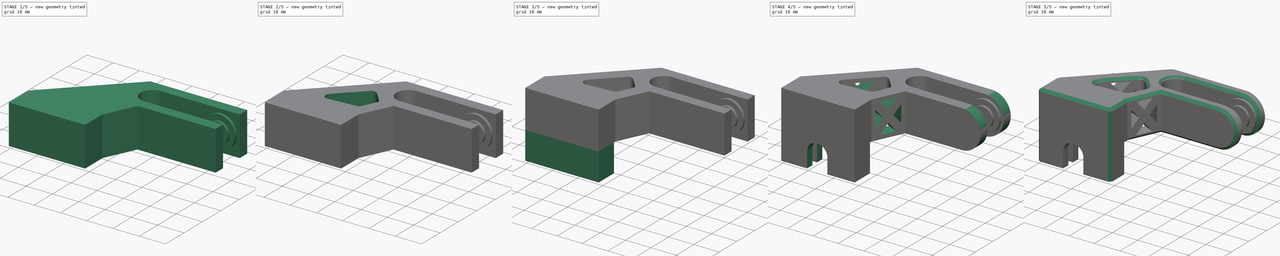
[diagram: build sequence overview — one tinted view per stage of 5, left to right]
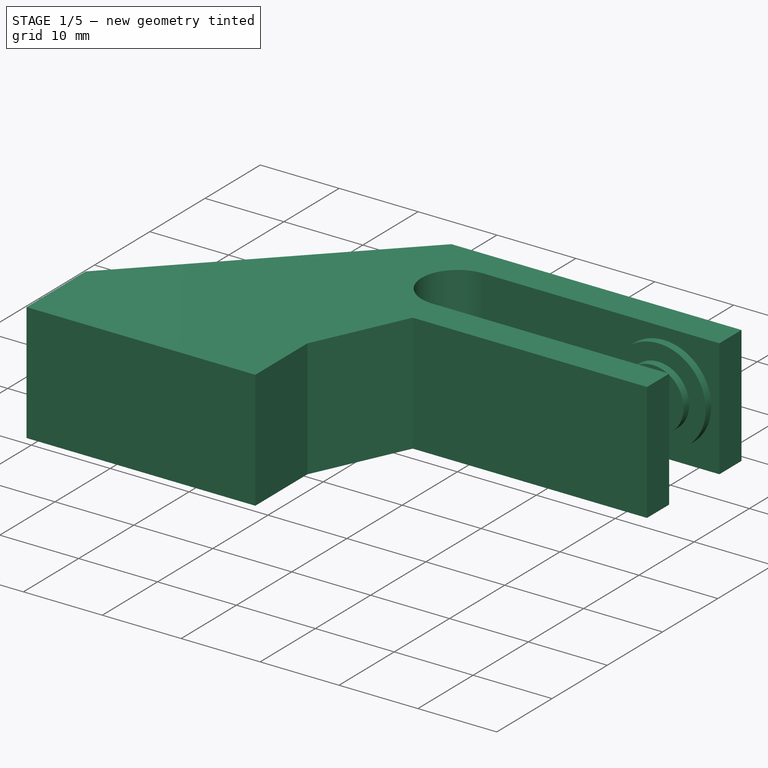
[diagram: stage 1 of 5 — iso view after this stage's code; geometry added in this stage tinted green]
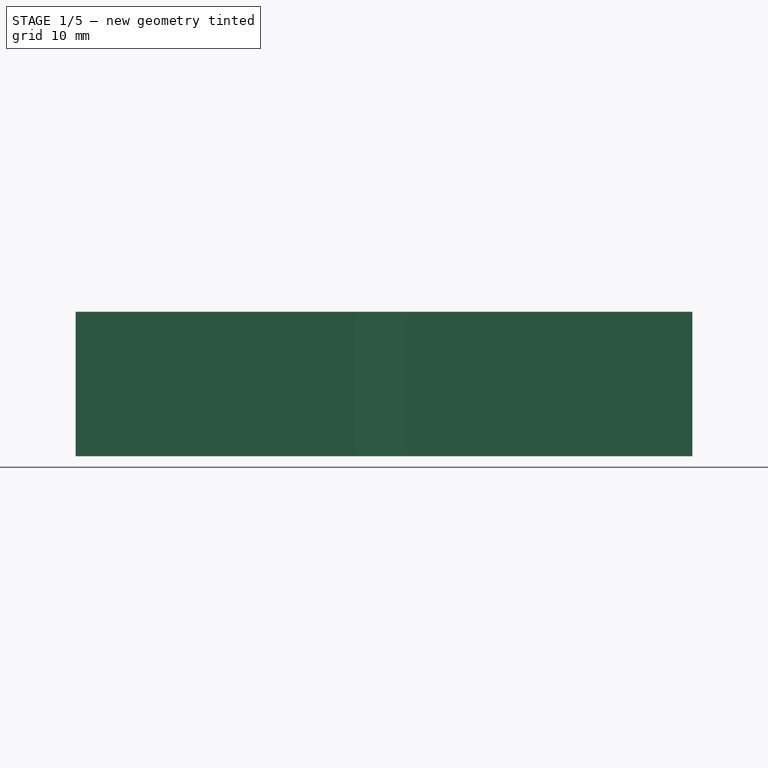
[diagram: stage 1 of 5 — front view after this stage's code; geometry added in this stage tinted green]
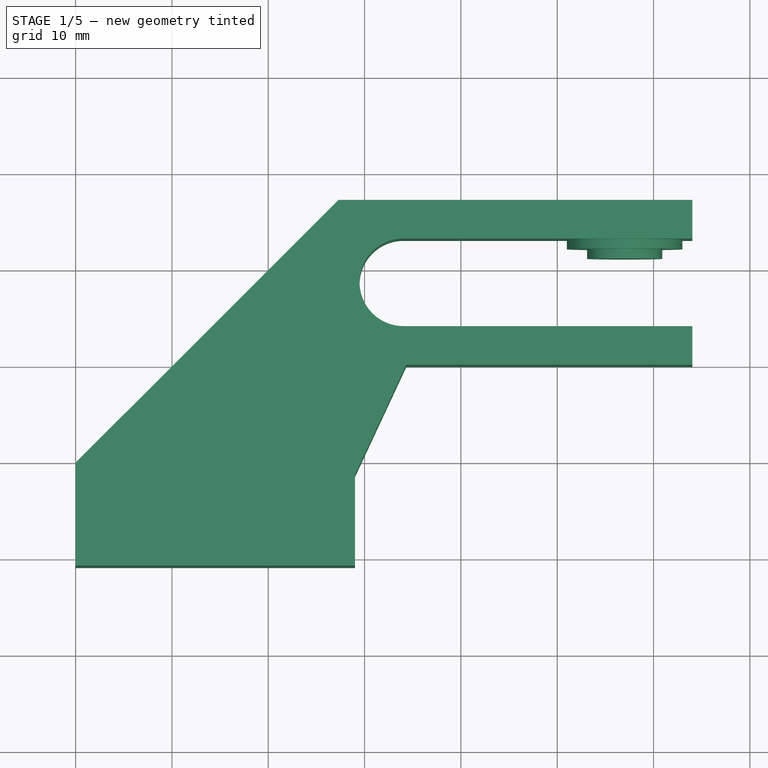
[diagram: stage 1 of 5 — top view after this stage's code; geometry added in this stage tinted green]
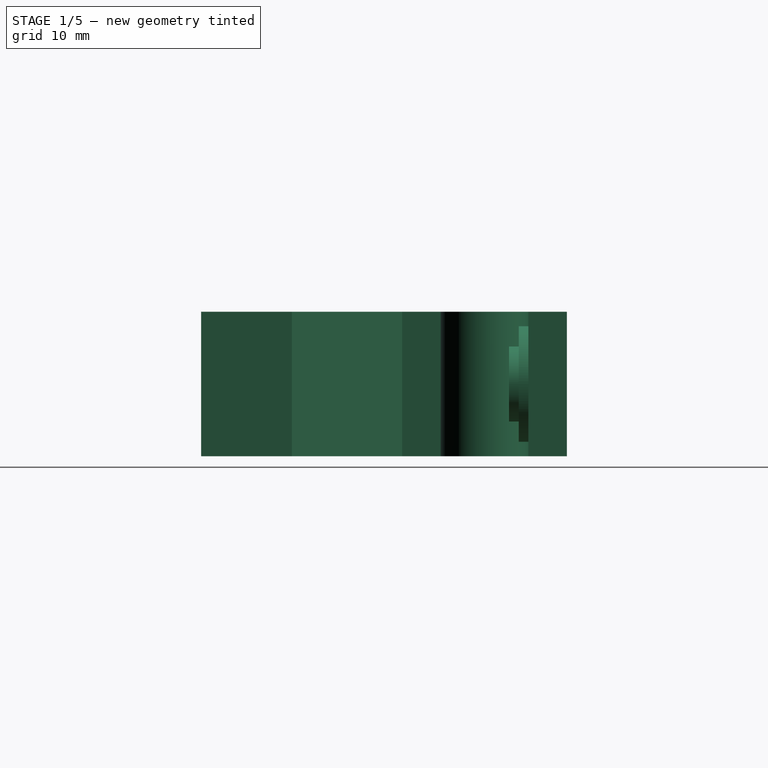
[diagram: stage 1 of 5 — right view after this stage's code; geometry added in this stage tinted green]
FCSTD DOCUMENT  (FreeCAD 0.19R23141 (Git))
Label: Bearing_Bracket_2020-12-09.FCStd-
License: All rights reserved
LicenseURL: http://en.wikipedia.org/wiki/All_rights_reserved
objects: Sketcher::SketchObject×11, PartDesign::Pad×7, PartDesign::Pocket×4, PartDesign::Chamfer×3, PartDesign::Fillet×1, PartDesign::Body×1, App::Part×1
note: 42 computed .brp shape members not serialized (recipe doc carries the construction recipe); baked Part::Feature solids carry a one-line shape summary decoded from their .brp

FEATURE [Sketcher::SketchObject] Sketch001  label="Main Body"
  MapMode = 5
  Support = -> [XY_Plane001]
  sketch-geometry (24):
    g0: ArcOfCircle [constr] CenterX=14.485 CenterY=-15.4501 CenterZ=0 NormalX=0 NormalY=0 NormalZ=1 AngleXU=0 Radius=1.9999 StartAngle=2.35607 EndAngle=4.71251
    g1: ArcOfCircle [constr] CenterX=25.1777 CenterY=-15.4502 CenterZ=0 NormalX=0 NormalY=0 NormalZ=1 AngleXU=0 Radius=1.99978 StartAngle=4.71232 EndAngle=5.84692
    g2: ArcOfCircle CenterX=34.032 CenterY=-1.45 CenterZ=0 NormalX=0 NormalY=0 NormalZ=1 AngleXU=0 Radius=4.55 StartAngle=1.5708 EndAngle=4.71239
    g3: LineSegment StartX=0 StartY=-20.1781 StartZ=0 EndX=0 EndY=-30.8676 EndZ=0
    g4: LineSegment StartX=0 StartY=-30.8676 StartZ=0 EndX=29 EndY=-30.8676 EndZ=0
    g5: LineSegment StartX=29 StartY=-30.8676 StartZ=0 EndX=29 EndY=-21.4458 EndZ=0
    g6: ArcOfCircle [constr] CenterX=27.382 CenterY=-10.722 CenterZ=0 NormalX=0 NormalY=0 NormalZ=1 AngleXU=0 Radius=2.00029 StartAngle=5.84695 EndAngle=7.06848
    g7: ArcOfCircle [constr] CenterX=23.2977 CenterY=-6.63819 CenterZ=0 NormalX=0 NormalY=0 NormalZ=1 AngleXU=0 Radius=2.00039 StartAngle=0.785455 EndAngle=2.35586
    g8: LineSegment [constr] StartX=26.9902 StartY=-16.2952 StartZ=0 EndX=29.1949 EndY=-11.5672 EndZ=0
    g9: LineSegment [constr] StartX=13.0711 StartY=-14.0358 StartZ=0 EndX=21.8836 EndY=-5.22323 EndZ=0
    g10: LineSegment [constr] StartX=14.4853 StartY=-17.45 StartZ=0 EndX=25.1776 EndY=-17.45 EndZ=0
    g11: LineSegment [constr] StartX=28.7965 StartY=-9.3077 StartZ=0 EndX=24.7121 EndY=-5.22362 EndZ=0
    g12: LineSegment StartX=29 StartY=-21.4458 StartZ=0 EndX=34.3373 EndY=-10 EndZ=0
    g13: LineSegment StartX=64.032 StartY=7.1 StartZ=0 EndX=64.032 EndY=3.1 EndZ=0
    g14: LineSegment StartX=64.032 StartY=-6 StartZ=0 EndX=64.032 EndY=-10 EndZ=0
    g15: LineSegment StartX=0 StartY=-20.1781 StartZ=0 EndX=27.2781 EndY=7.1 EndZ=0
    g16: LineSegment StartX=34.032 StartY=-6 StartZ=0 EndX=64.032 EndY=-6 EndZ=0
    g17: LineSegment StartX=27.2781 StartY=7.1 StartZ=0 EndX=64.032 EndY=7.1 EndZ=0
    g18: LineSegment StartX=34.032 StartY=3.1 StartZ=0 EndX=64.032 EndY=3.1 EndZ=0
    g19: LineSegment StartX=34.3373 StartY=-10 StartZ=0 EndX=64.032 EndY=-10 EndZ=0
    g20: LineSegment [constr] StartX=1.159 StartY=-25.2676 StartZ=0 EndX=27.159 EndY=-25.2676 EndZ=0
    g21: LineSegment [constr] StartX=27.159 StartY=-25.2676 StartZ=0 EndX=27.159 EndY=-27.8676 EndZ=0
    g22: LineSegment [constr] StartX=27.159 StartY=-27.8676 StartZ=0 EndX=1.159 EndY=-27.8676 EndZ=0
    g23: LineSegment [constr] StartX=1.159 StartY=-27.8676 StartZ=0 EndX=1.159 EndY=-25.2676 EndZ=0
  constraints (45):
    c: Coincident(g16,g14)
    c: Horizontal(g16)
    c: Coincident(g17,g13)
    c: Horizontal(g17)
    c: Coincident(g18,g13)
    c: Horizontal(g18)
    c: Coincident(g19,g14)
    c: Horizontal(g19)
    c: Equal(g18,g16)
    c: DistanceY(g2) = 3.1
    c: DistanceY(g2) = -6
    c: Vertical(g13)
    c: Vertical(g14)
    c: Vertical(g3)
    c: Angle(g15) = 0.785398
    c: PointOnObject(g4,g-2)
    c: Coincident(g3,g15)
    c: Coincident(g3,g4)
    c: Vertical(g5)
    c: Coincident(g5,g4)
    c: Horizontal(g4)
    c: Angle(g12) = 1.13446
    c: Distance(g4) = 29
    c: Coincident(g5,g12)
    c: DistanceY(g14) = -10
    c: Coincident(g12,g19)
    c: Coincident(g15,g17)
    c: Coincident(g20,g21)
    c: Coincident(g21,g22)
    c: Coincident(g22,g23)
    c: Coincident(g23,g20)
    c: Horizontal(g20)
    c: Horizontal(g22)
    c: Vertical(g21)
    c: Vertical(g23)
    c: Distance(g21) = 2.6
    c: Distance(g22) = 26
    c: Distance(g3,g23) = 1.159
    c: Distance(g22,g4) = 3
    c: Equal(g13,g14)
    c: DistanceX(g2) = 34.032
    c: DistanceX(g15) = 27.2781
    c: Distance(g2,g13) = 30
    c: Tangent(g2,g18) = 1.5708
    c: Tangent(g16,g2) = -1.5708
FEATURE [PartDesign::Pad] Pad
  Direction = (1,1,1)
  Length = 15
  Length2 = 100
  Profile = -> Sketch001
  Type = 0
FEATURE [Sketcher::SketchObject] Sketch003  label="Bearing Shoulder1"
  MapMode = 5
  Placement = pos=(0,3.1,0) rot=(1,0,0;1.5708rad)
  sketch-geometry (1):
    g0: Circle CenterX=57 CenterY=7.5 CenterZ=0 NormalX=0 NormalY=0 NormalZ=1 AngleXU=0 Radius=6
  constraints (2):
    c: Diameter(g0) = 12
    c: DistanceX(g0) = 57
FEATURE [PartDesign::Pad] Pad001
  BaseFeature = -> Pad
  Direction = (1,1,1)
  Length = 1
  Length2 = 100
  Profile = -> Sketch003
  Type = 0
FEATURE [Sketcher::SketchObject] Sketch004  label="Bearing Shoulder 2"
  MapMode = 5
  Placement = pos=(0,-6,0) rot=(0,0.707107,0.707107;3.14159rad)
  sketch-geometry (4):
    g0: Circle [constr] CenterX=-57 CenterY=7.5 CenterZ=0 NormalX=0 NormalY=0 NormalZ=1 AngleXU=0 Radius=3.02529
    g1: Circle CenterX=-57 CenterY=7.5 CenterZ=0 NormalX=0 NormalY=0 NormalZ=1 AngleXU=0 Radius=6
    g2: LineSegment [constr] StartX=-57 StartY=7.5 StartZ=0 EndX=-57 EndY=15 EndZ=0
    g3: LineSegment [constr] StartX=-57 StartY=7.5 StartZ=0 EndX=-57 EndY=-1.8e-15 EndZ=0
  constraints (8):
    c: Coincident(g1,g0)
    c: DistanceX(g0) = -57
    c: Coincident(g2,g0)
    c: Vertical(g2)
    c: Coincident(g3,g0)
    c: Vertical(g3)
    c: Equal(g2,g3)
    c: Diameter(g1) = 12
FEATURE [Sketcher::SketchObject] Sketch  label="Bearing Axle2"
  MapMode = 5
  Placement = pos=(0,-5,1e-15) rot=(0,0.707107,0.707107;3.14159rad)
  sketch-geometry (1):
    g0: Circle CenterX=-57 CenterY=7.5 CenterZ=0 NormalX=0 NormalY=0 NormalZ=1 AngleXU=0 Radius=3.9
  constraints (2):
    c: Diameter(g0) = 7.8
    c: DistanceX(g0) = -57
FEATURE [Sketcher::SketchObject] Sketch005  label="Bearing Axle1"
  ExternalGeometry = -> [Pad001]
  MapMode = 5
  Placement = pos=(-1e-16,2.1,-4e-16) rot=(1,0,0;1.5708rad)
  Support = -> [Pad001]
  sketch-geometry (1):
    g0: Circle CenterX=57 CenterY=7.5 CenterZ=0 NormalX=0 NormalY=0 NormalZ=1 AngleXU=0 Radius=3.9
  constraints (2):
    c: Coincident(g0,g-3)
    c: Diameter(g0) = 7.8
FEATURE [PartDesign::Pad] Pad002
  BaseFeature = -> Pad001
  Direction = (1,1,1)
  Length = 1
  Length2 = 100
  Profile = -> Sketch005
  Type = 0
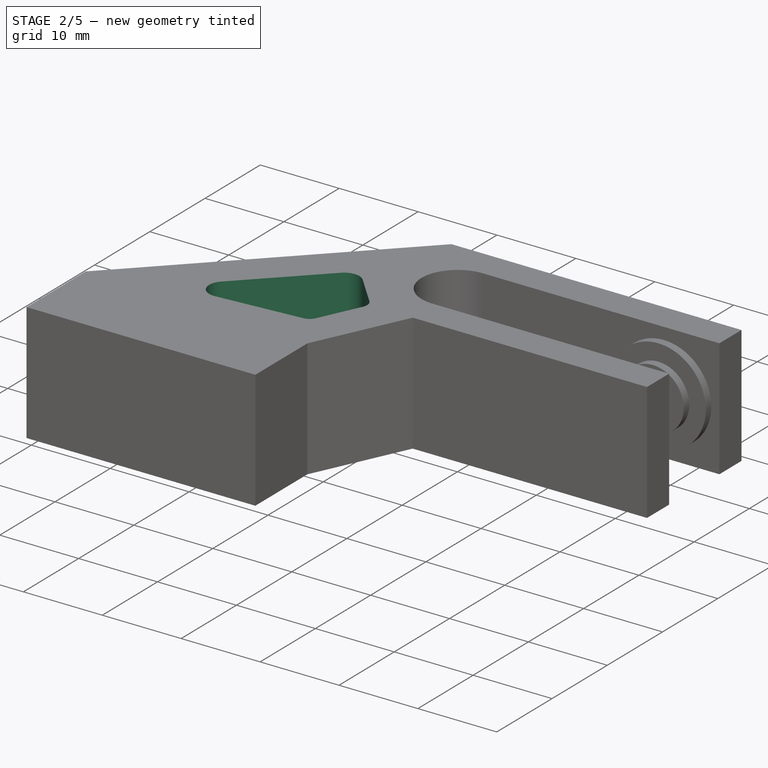
[diagram: stage 2 of 5 — iso view after this stage's code; geometry added in this stage tinted green]
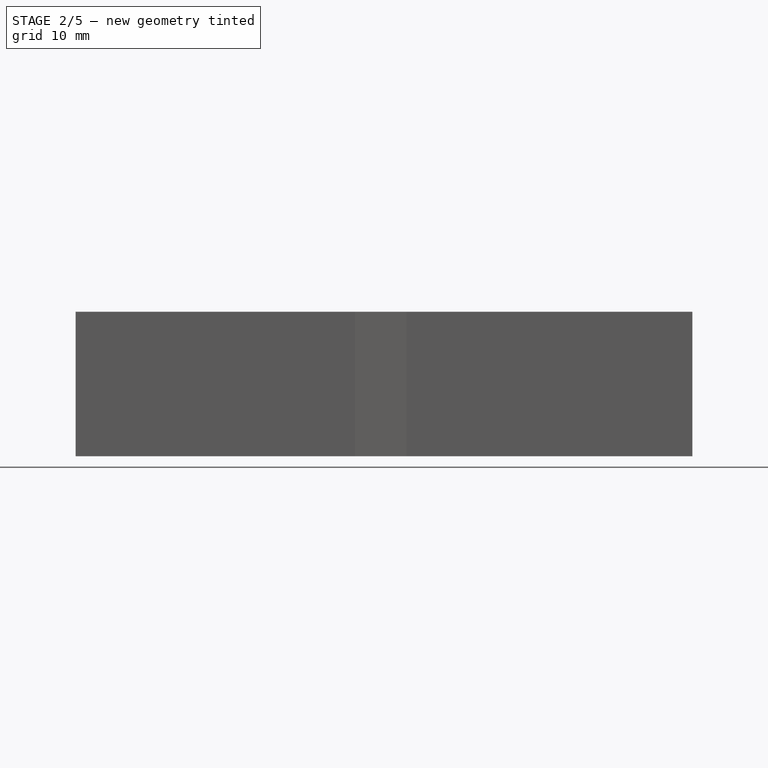
[diagram: stage 2 of 5 — front view after this stage's code; geometry added in this stage tinted green]
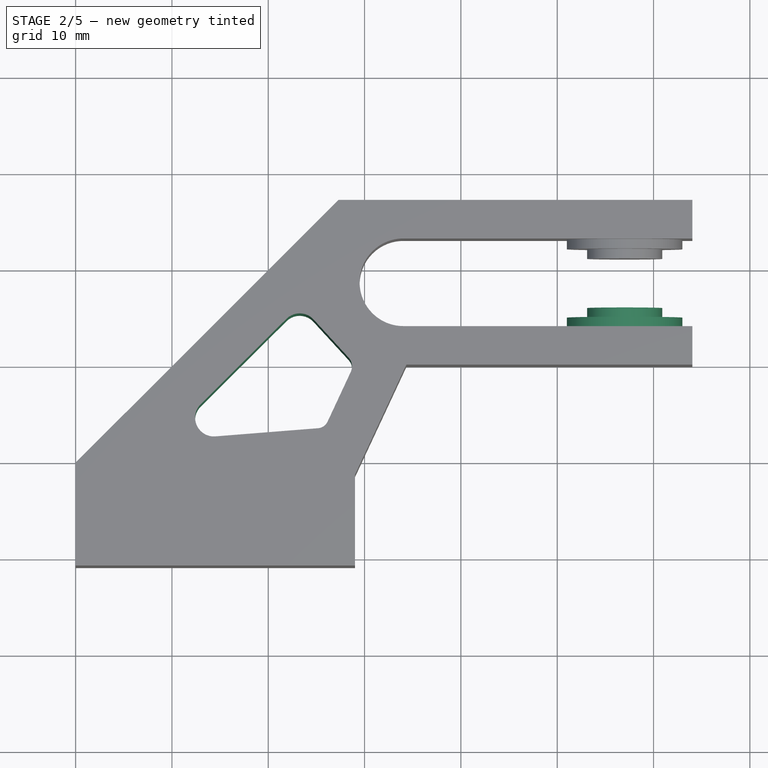
[diagram: stage 2 of 5 — top view after this stage's code; geometry added in this stage tinted green]
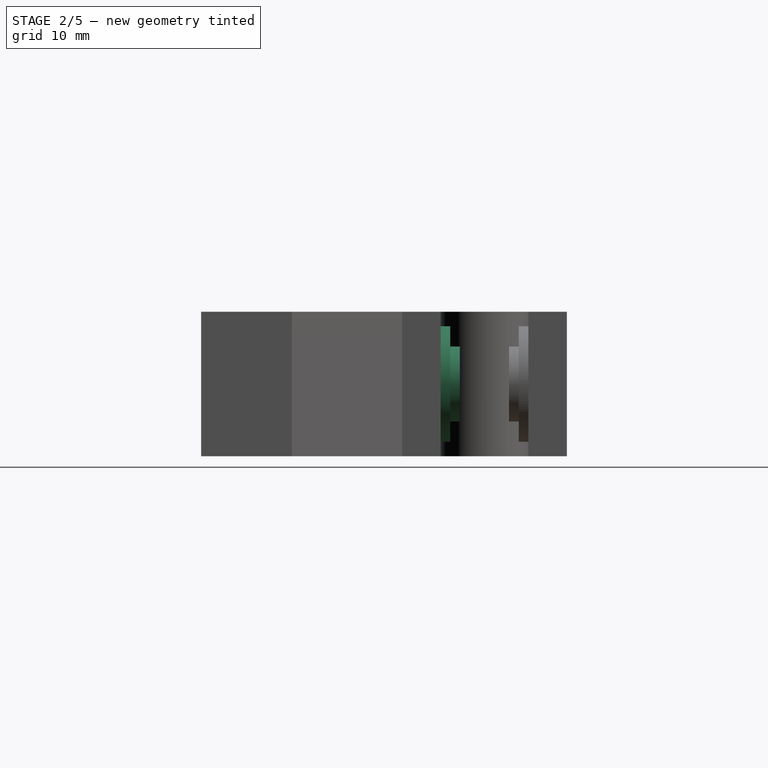
[diagram: stage 2 of 5 — right view after this stage's code; geometry added in this stage tinted green]
FEATURE [PartDesign::Pad] Pad003  label="Bearing Shoulder 2 Pad"
  BaseFeature = -> Pad002
  Direction = (1,1,1)
  Length = 1
  Length2 = 100
  Profile = -> Sketch004
  Type = 0
FEATURE [PartDesign::Pad] Pad004
  BaseFeature = -> Pad003
  Direction = (1,1,1)
  Length = 1
  Length2 = 100
  Profile = -> Sketch
  Type = 0
FEATURE [Sketcher::SketchObject] Sketch008  label="Body Hole"
  ExternalGeometry = -> [Sketch001]
  MapMode = 5
  Support = -> [XY_Plane001]
  sketch-geometry (10):
    g0: ArcOfCircle CenterX=14.3607 CenterY=-15.5034 CenterZ=0 NormalX=0 NormalY=0 NormalZ=1 AngleXU=0 Radius=1.95551 StartAngle=2.29182 EndAngle=4.79165
    g1: ArcOfCircle CenterX=25.0765 CenterY=-15.417 CenterZ=0 NormalX=0 NormalY=0 NormalZ=1 AngleXU=0 Radius=1.19315 StartAngle=4.79165 EndAngle=5.84685
    g2: ArcOfCircle CenterX=27.3272 CenterY=-10.1859 CenterZ=0 NormalX=0 NormalY=0 NormalZ=1 AngleXU=0 Radius=1.36412 StartAngle=5.84685 EndAngle=7.02621
    g3: ArcOfCircle CenterX=23.2631 CenterY=-6.64014 CenterZ=0 NormalX=0 NormalY=0 NormalZ=1 AngleXU=0 Radius=1.95818 StartAngle=0.743029 EndAngle=2.3545
    g4: LineSegment StartX=26.1579 StartY=-15.9213 StartZ=0 EndX=28.5635 EndY=-10.7624 EndZ=0
    g5: LineSegment StartX=13.0698 StartY=-14.0345 StartZ=0 EndX=21.8808 EndY=-5.25316 EndZ=0
    g6: LineSegment StartX=14.5155 StartY=-17.4528 StartZ=0 EndX=25.171 EndY=-16.6064 EndZ=0
    g7: LineSegment StartX=28.3318 StartY=-9.26307 StartZ=0 EndX=24.7052 EndY=-5.31539 EndZ=0
    g8: LineSegment [constr] StartX=15.0628 StartY=-5.1153 StartZ=0 EndX=18.5292 EndY=-8.59348 EndZ=0
    g9: LineSegment [constr] StartX=26.7143 StartY=-14.7281 StartZ=0 EndX=31.1648 EndY=-16.8034 EndZ=0
  constraints (16):
    c: PointOnObject(g8,g-3)
    c: PointOnObject(g8,g5)
    c: Perpendicular(g5,g8)
    c: PointOnObject(g9,g4)
    c: PointOnObject(g9,g-4)
    c: Perpendicular(g4,g9)
    c: Perpendicular(g-4,g9)
    c: Coincident(g5,g0)
    c: Equal(g8,g9)
    c: Tangent(g6,g0) = -1.5708
    c: Tangent(g6,g1) = -1.5708
    c: Tangent(g4,g2) = -1.5708
    c: Tangent(g7,g2) = -1.5708
    c: Tangent(g7,g3) = -1.5708
    c: Tangent(g5,g3) = 1.5708
    c: Tangent(g1,g4) = -1.5708
FEATURE [PartDesign::Pocket] Pocket  label="Body Hole001"
  BaseFeature = -> Pad004
  Length = 5
  Length2 = 100
  Profile = -> Sketch008
  Reversed = true
  Type = 1
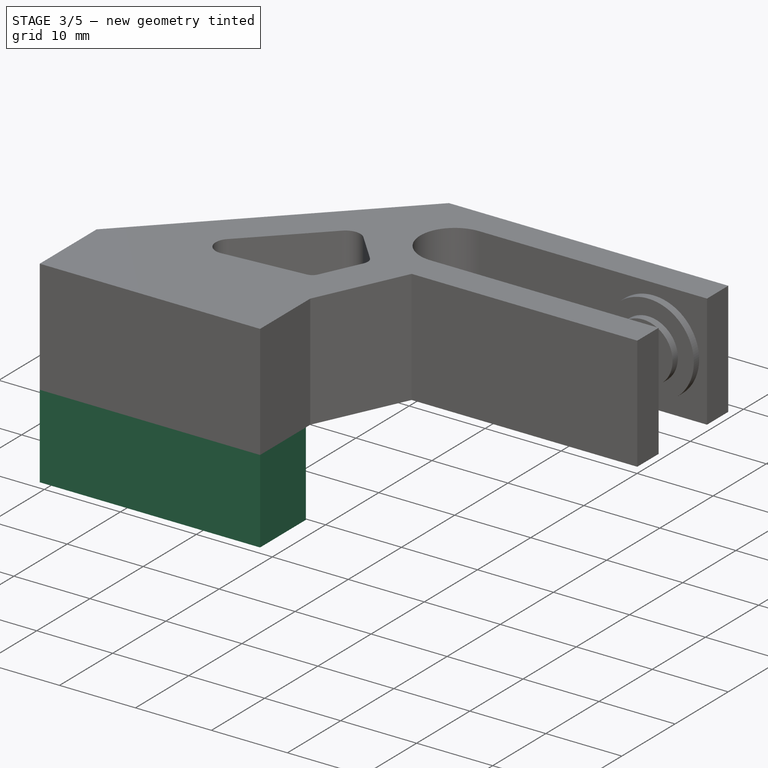
[diagram: stage 3 of 5 — iso view after this stage's code; geometry added in this stage tinted green]
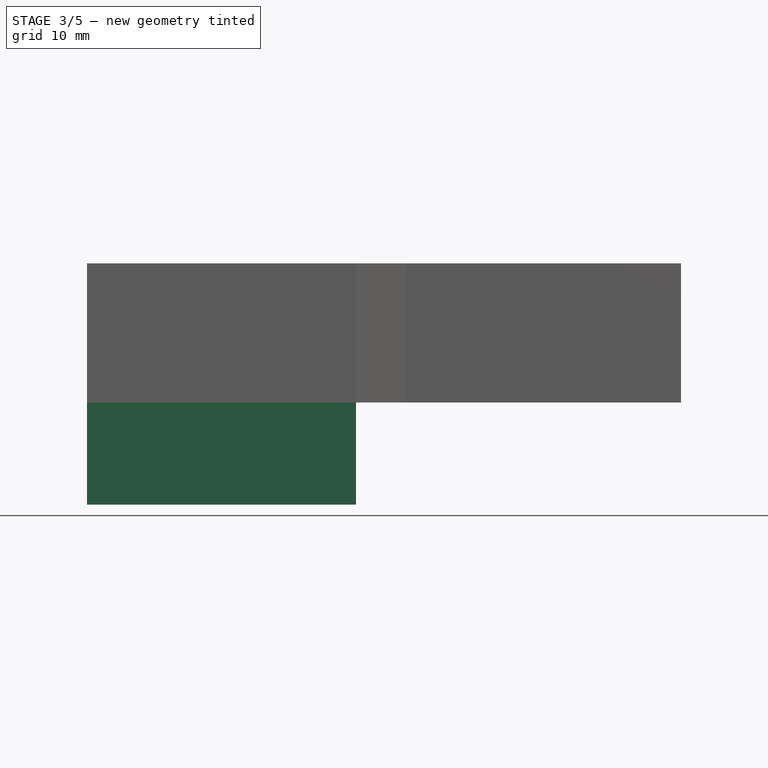
[diagram: stage 3 of 5 — front view after this stage's code; geometry added in this stage tinted green]
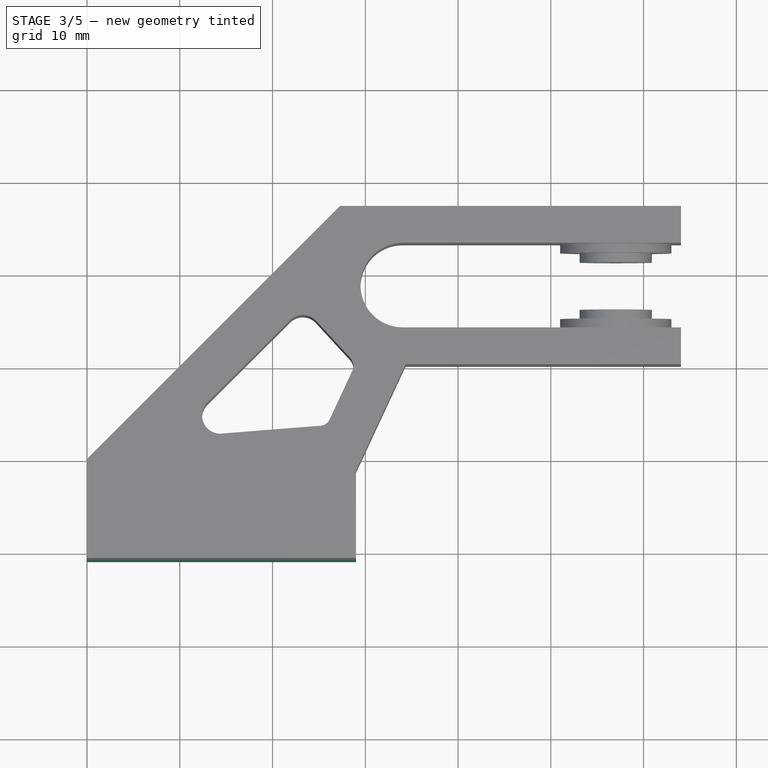
[diagram: stage 3 of 5 — top view after this stage's code; geometry added in this stage tinted green]
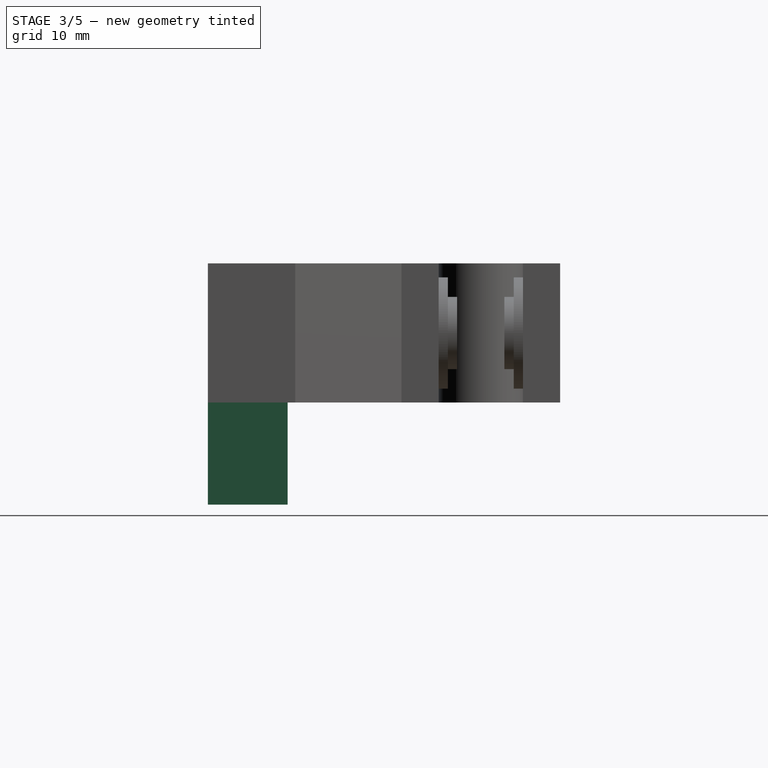
[diagram: stage 3 of 5 — right view after this stage's code; geometry added in this stage tinted green]
FEATURE [Sketcher::SketchObject] Sketch012  label="Body build-up"
  ExternalGeometry = -> [Sketch001]
  MapMode = 5
  Placement = pos=(0,0,0) rot=(1,0,0;3.14159rad)
  Support = -> [Pocket]
  sketch-geometry (10):
    g0: LineSegment StartX=1.159 StartY=27.8676 StartZ=0 EndX=27.159 EndY=27.8676 EndZ=0
    g1: LineSegment StartX=27.159 StartY=27.8676 StartZ=0 EndX=27.159 EndY=25.2676 EndZ=0
    g2: LineSegment StartX=27.159 StartY=25.2676 StartZ=0 EndX=1.159 EndY=25.2676 EndZ=0
    g3: LineSegment StartX=1.159 StartY=25.2676 StartZ=0 EndX=1.159 EndY=27.8676 EndZ=0
    g4: LineSegment [constr] StartX=3.82365 StartY=27.8676 StartZ=0 EndX=3.82365 EndY=30.8676 EndZ=0
    g5: LineSegment StartX=0 StartY=22.2676 StartZ=0 EndX=29 EndY=22.2676 EndZ=0
    g6: LineSegment [constr] StartX=7.85403 StartY=22.2676 StartZ=0 EndX=7.85403 EndY=25.2676 EndZ=0
    g7: LineSegment StartX=29 StartY=30.8676 StartZ=0 EndX=29 EndY=22.2676 EndZ=0
    g8: LineSegment StartX=0 StartY=30.8676 StartZ=0 EndX=0 EndY=22.2676 EndZ=0
    g9: LineSegment StartX=0 StartY=30.8676 StartZ=0 EndX=29 EndY=30.8676 EndZ=0
  constraints (28):
    c: Coincident(g0,g1)
    c: Coincident(g1,g2)
    c: Coincident(g2,g3)
    c: Coincident(g3,g0)
    c: Horizontal(g0)
    c: Horizontal(g2)
    c: Vertical(g1)
    c: Vertical(g3)
    c: Distance(g0) = 26
    c: Distance(g3) = 2.6
    c: PointOnObject(g4,g0)
    c: PointOnObject(g4,g-3)
    c: Vertical(g4)
    c: DistanceY(g4,g4) = 3
    c: Horizontal(g5)
    c: PointOnObject(g6,g5)
    c: PointOnObject(g6,g2)
    c: Vertical(g6)
    c: Equal(g6,g4)
    c: PointOnObject(g5,g-4)
    c: PointOnObject(g5,g-2)
    c: DistanceX(g-2,g2) = 1.159
    c: Coincident(g7,g-4)
    c: Coincident(g7,g5)
    c: Coincident(g8,g-3)
    c: Coincident(g8,g5)
    c: Coincident(g9,g8)
    c: Coincident(g9,g7)
FEATURE [PartDesign::Pad] Pad005  label="Body build-up001"
  BaseFeature = -> Pocket
  Direction = (1,1,1)
  Length = 11
  Length2 = 100
  Profile = -> Sketch012
  Type = 0
FEATURE [Sketcher::SketchObject] Sketch013
  ExternalGeometry = -> [Pad005]
  MapMode = 5
  Placement = pos=(0,0,-11) rot=(1,0,0;3.14159rad)
  Support = -> [Pad005]
  sketch-geometry (4):
    g0: LineSegment StartX=1.159 StartY=27.8676 StartZ=0 EndX=27.159 EndY=27.8676 EndZ=0
    g1: LineSegment StartX=27.159 StartY=27.8676 StartZ=0 EndX=27.159 EndY=25.2676 EndZ=0
    g2: LineSegment StartX=27.159 StartY=25.2676 StartZ=0 EndX=1.159 EndY=25.2676 EndZ=0
    g3: LineSegment StartX=1.159 StartY=25.2676 StartZ=0 EndX=1.159 EndY=27.8676 EndZ=0
  constraints (10):
    c: Coincident(g0,g1)
    c: Coincident(g1,g2)
    c: Coincident(g2,g3)
    c: Coincident(g3,g0)
    c: Horizontal(g0)
    c: Horizontal(g2)
    c: Vertical(g1)
    c: Vertical(g3)
    c: Coincident(g0,g-3)
    c: Coincident(g1,g-4)
FEATURE [PartDesign::Pocket] Pocket001  label="Slot Pocket"
  BaseFeature = -> Pad005
  Length = 21.471
  Length2 = 100
  Profile = -> Sketch013
  Type = 0
FEATURE [Sketcher::SketchObject] Sketch014
  ExternalGeometry = -> [Pocket001]
  MapMode = 5
  Placement = pos=(0,-25.2676,0) rot=(1,0,0;1.5708rad)
  Support = -> [Pocket001]
  sketch-geometry (4):
    g0: LineSegment [constr] StartX=27.159 StartY=-11 StartZ=0 EndX=27.159 EndY=-0.9 EndZ=0
    g1: LineSegment StartX=27.159 StartY=-0.9 StartZ=0 EndX=27.159 EndY=10.471 EndZ=0
    g2: LineSegment StartX=27.159 StartY=-0.9 StartZ=0 EndX=17.1567 EndY=10.471 EndZ=0
    g3: LineSegment StartX=27.159 StartY=10.471 StartZ=0 EndX=17.1567 EndY=10.471 EndZ=0
  constraints (11):
    c: Coincident(g0,g-4)
    c: Vertical(g0)
    c: DistanceY(g0,g0) = 10.1
    c: PointOnObject(g1,g0)
    c: Coincident(g1,g-3)
    c: Coincident(g2,g1)
    c: PointOnObject(g2,g-3)
    c: Coincident(g3,g1)
    c: Coincident(g3,g2)
    c: Angle(g2,g0) = 2.42014
    c: Distance(g1) = 11.371
FEATURE [PartDesign::Pad] Pad006  label="Ramp Pocket"
  BaseFeature = -> Pocket001
  Direction = (1,1,1)
  Length = 3
  Length2 = 100
  Profile = -> Sketch014
  Type = 2
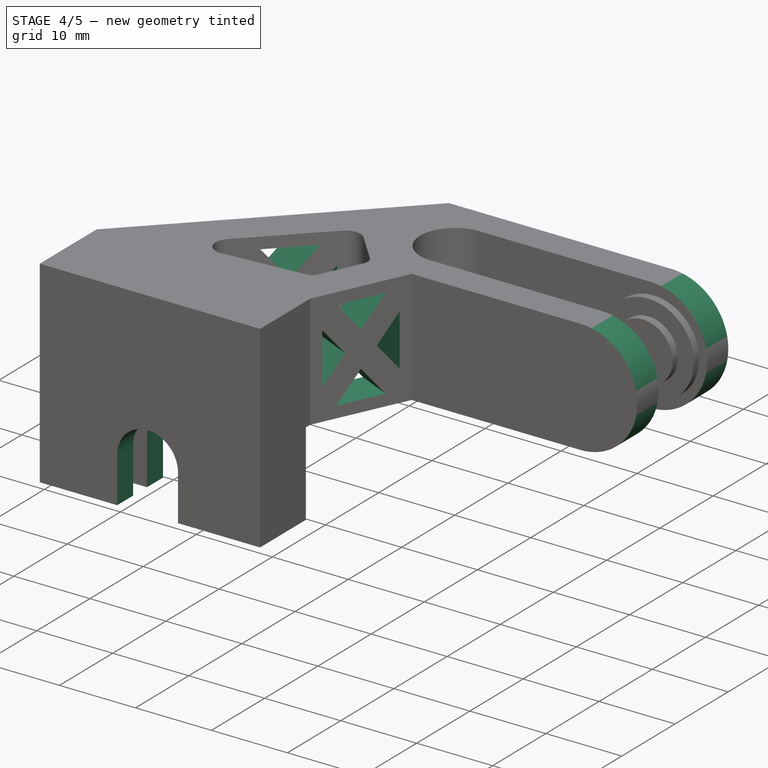
[diagram: stage 4 of 5 — iso view after this stage's code; geometry added in this stage tinted green]
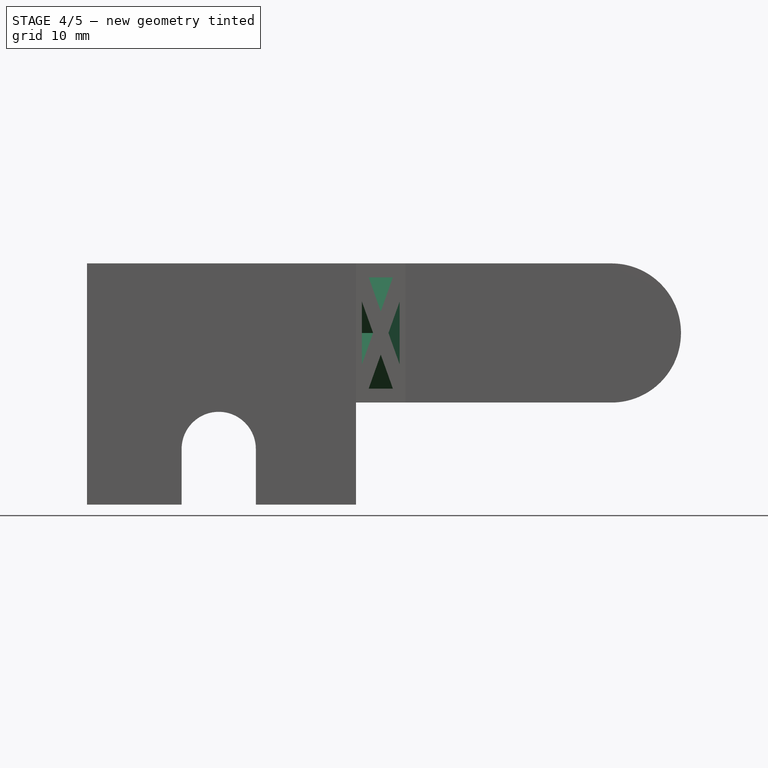
[diagram: stage 4 of 5 — front view after this stage's code; geometry added in this stage tinted green]
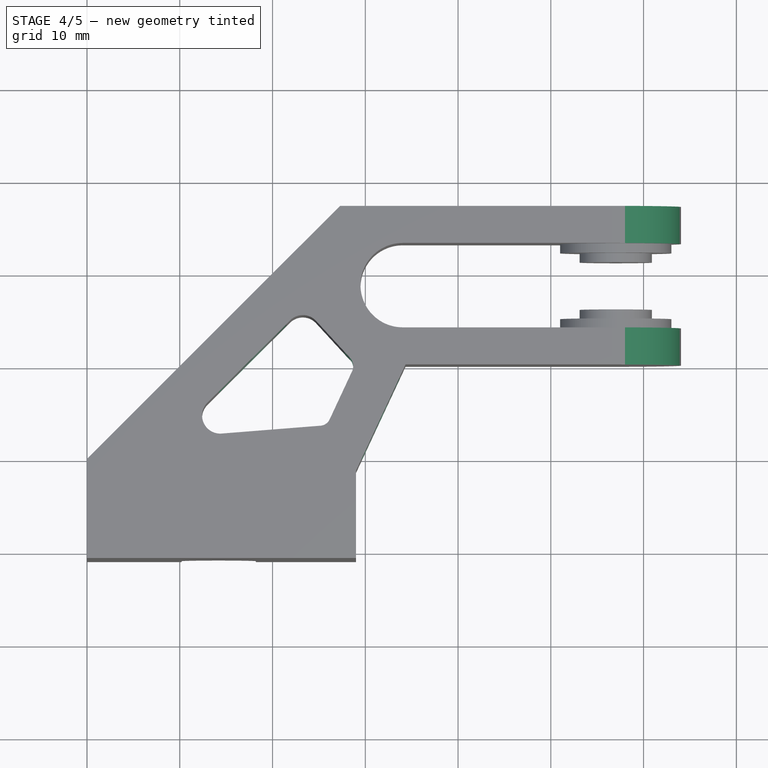
[diagram: stage 4 of 5 — top view after this stage's code; geometry added in this stage tinted green]
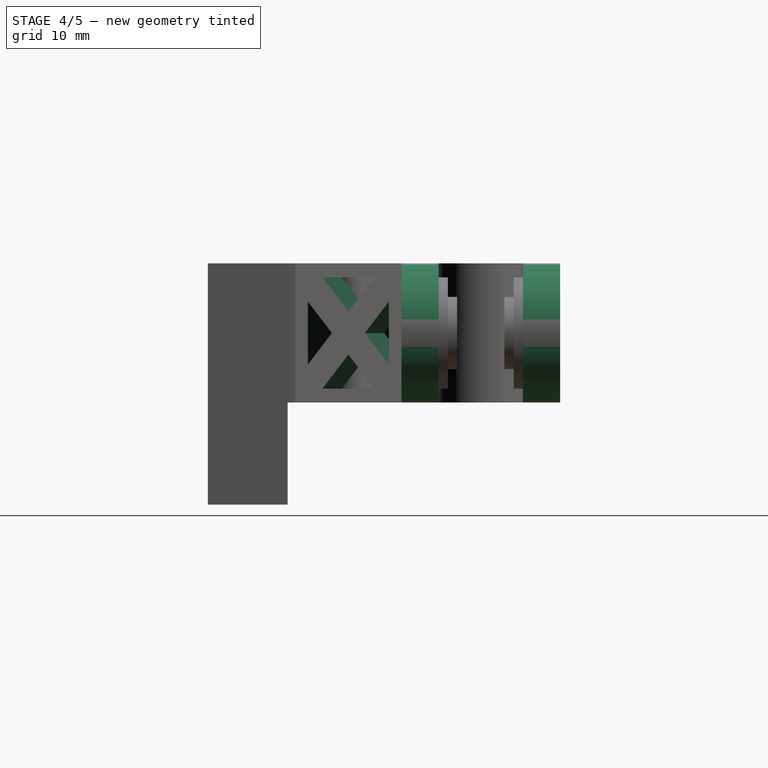
[diagram: stage 4 of 5 — right view after this stage's code; geometry added in this stage tinted green]
FEATURE [Sketcher::SketchObject] Sketch015  label="X-hole"
  ExternalGeometry = -> [Pad006]
  MapMode = 5
  Placement = pos=(32.0346,-14.938,0) rot=(0.742942,0.473306,0.473306;1.86366rad)
  Support = -> [Pad006]
  sketch-geometry (30):
    g0: LineSegment [constr] StartX=-7.18058 StartY=0 StartZ=0 EndX=5.44848 EndY=15 EndZ=0
    g1: LineSegment [constr] StartX=5.44848 StartY=0 StartZ=0 EndX=-7.18058 EndY=15 EndZ=0
    g2: LineSegment StartX=-5.68058 StartY=10.8894 StartZ=0 EndX=-2.8269 EndY=7.5 EndZ=0
    g3: LineSegment StartX=-3.95683 StartY=13.5 StartZ=0 EndX=-0.866051 EndY=9.82897 EndZ=0
    g4: LineSegment StartX=3.94848 StartY=10.8894 StartZ=0 EndX=1.0948 EndY=7.5 EndZ=0
    g5: LineSegment StartX=-5.68058 StartY=4.11058 StartZ=0 EndX=-2.8269 EndY=7.5 EndZ=0
    g6: LineSegment [constr] StartX=-4.73035 StartY=9.7608 StartZ=0 EndX=-3.58289 EndY=10.7269 EndZ=0
    g7: LineSegment [constr] StartX=-3.58289 StartY=10.7269 StartZ=0 EndX=-2.43543 EndY=11.693 EndZ=0
    g8: LineSegment [constr] StartX=-7.18058 StartY=12.671 StartZ=0 EndX=-7.18058 EndY=2.32897 EndZ=0
    g9: LineSegment [constr] StartX=-4.68975 StartY=5.28743 StartZ=0 EndX=-3.54229 EndY=4.32134 EndZ=0
    g10: LineSegment [constr] StartX=-2.79877 StartY=2.87546 StartZ=0 EndX=-3.94623 EndY=3.84156 EndZ=0
    g11: GeomPoint X=-2.8269 Y=7.5 Z=0
    g12: GeomPoint X=-0.866051 Y=9.82897 Z=0
    g13: GeomPoint X=1.0948 Y=7.5 Z=0
    g14: GeomPoint X=-0.866051 Y=5.17103 Z=0
    g15: LineSegment StartX=-0.866051 StartY=5.17103 StartZ=0 EndX=2.22472 EndY=1.5 EndZ=0
    g16: LineSegment StartX=1.0948 StartY=7.5 StartZ=0 EndX=3.94848 EndY=4.11058 EndZ=0
    g17: LineSegment StartX=-0.866051 StartY=9.82897 StartZ=0 EndX=2.22472 EndY=13.5 EndZ=0
    g18: LineSegment StartX=-0.866051 StartY=5.17103 StartZ=0 EndX=-3.95683 EndY=1.5 EndZ=0
    g19: LineSegment [constr] StartX=-5.21973 StartY=0 StartZ=0 EndX=3.48763 EndY=0 EndZ=0
    g20: LineSegment [constr] StartX=5.44848 StartY=12.671 StartZ=0 EndX=5.44848 EndY=2.32897 EndZ=0
    g21: LineSegment [constr] StartX=3.48763 StartY=15 StartZ=0 EndX=-5.21973 EndY=15 EndZ=0
    g22: LineSegment StartX=-5.68058 StartY=10.8894 StartZ=0 EndX=-5.68058 EndY=4.11058 EndZ=0
    g23: LineSegment [constr] StartX=-7.18058 StartY=7.92935 StartZ=0 EndX=-5.68058 EndY=7.92935 EndZ=0
    g24: LineSegment StartX=-3.95683 StartY=13.5 StartZ=0 EndX=2.22472 EndY=13.5 EndZ=0
    g25: LineSegment StartX=3.94848 StartY=10.8894 StartZ=0 EndX=3.94848 EndY=4.11058 EndZ=0
    g26: LineSegment StartX=-3.95683 StartY=1.5 StartZ=0 EndX=2.22472 EndY=1.5 EndZ=0
    g27: LineSegment [constr] StartX=-1.44233 StartY=1.5 StartZ=0 EndX=-1.44233 EndY=0 EndZ=0
    g28: LineSegment [constr] StartX=3.94848 StartY=6.10634 StartZ=0 EndX=5.44848 EndY=6.10634 EndZ=0
    g29: LineSegment [constr] StartX=1.04477 StartY=15 StartZ=0 EndX=1.04477 EndY=13.5 EndZ=0
  constraints (76):
    c: Coincident(g0,g-6)
    c: Coincident(g0,g-4)
    c: Coincident(g1,g-5)
    c: Coincident(g1,g-6)
    c: PointOnObject(g8,g-6)
    c: PointOnObject(g19,g-5)
    c: PointOnObject(g21,g-3)
    c: PointOnObject(g20,g-4)
    c: PointOnObject(g20,g-4)
    c: PointOnObject(g19,g-5)
    c: PointOnObject(g8,g-6)
    c: PointOnObject(g21,g-3)
    c: Parallel(g3,g1)
    c: Parallel(g1,g2)
    c: Parallel(g5,g0)
    c: Parallel(g0,g4)
    c: PointOnObject(g6,g2)
    c: PointOnObject(g6,g1)
    c: Coincident(g7,g6)
    c: PointOnObject(g7,g3)
    c: Perpendicular(g3,g7)
    c: Perpendicular(g2,g6)
    c: Distance(g7) = 1.5
    c: Equal(g6,g7)
    c: PointOnObject(g9,g5)
    c: PointOnObject(g10,g4)
    c: PointOnObject(g10,g0)
    c: Perpendicular(g5,g9)
    c: Perpendicular(g4,g10)
    c: Equal(g10,g9)
    c: Equal(g9,g6)
    c: PointOnObject(g9,g0)
    c: PointOnObject(g11,g5)
    c: PointOnObject(g11,g2)
    c: PointOnObject(g12,g5)
    c: PointOnObject(g13,g4)
    c: PointOnObject(g14,g4)
    c: PointOnObject(g12,g3)
    c: PointOnObject(g13,g3)
    c: PointOnObject(g14,g2)
    c: Tangent(g2,g15)
    c: Tangent(g3,g16)
    c: Coincident(g17,g3)
    c: Tangent(g5,g17)
    c: Coincident(g5,g2)
    c: Coincident(g18,g15)
    c: Tangent(g4,g18)
    c: Coincident(g4,g16)
    c: Vertical(g22)
    c: PointOnObject(g23,g8)
    c: PointOnObject(g23,g22)
    c: Horizontal(g23)
    c: Distance(g23) = 1.5
    c: Coincident(g2,g22)
    c: Coincident(g5,g22)
    c: Horizontal(g24)
    c: Vertical(g25)
    c: Horizontal(g26)
    c: PointOnObject(g27,g26)
    c: PointOnObject(g27,g19)
    c: PointOnObject(g28,g25)
    c: PointOnObject(g28,g20)
    c: PointOnObject(g29,g21)
    c: PointOnObject(g29,g24)
    c: Vertical(g29)
    c: Vertical(g27)
    c: Horizontal(g28)
    c: Equal(g29,g28)
    c: Equal(g28,g27)
    c: Equal(g27,g23)
    c: Coincident(g3,g24)
    c: Coincident(g17,g24)
    c: Coincident(g4,g25)
    c: Coincident(g16,g25)
    c: Coincident(g15,g26)
    c: Coincident(g18,g26)
FEATURE [PartDesign::Pocket] Pocket002  label="X-hole Pocket"
  BaseFeature = -> Pad006
  Length = 5
  Length2 = 100
  Profile = -> Sketch015
  Type = 1
FEATURE [PartDesign::Fillet] Fillet
  Base = -> Pocket002 [Edge31,Edge21,Edge13,Edge30]
  BaseFeature = -> Pocket002
  Radius = 7.499
  SupportTransform = false
FEATURE [Sketcher::SketchObject] Sketch016  label="Nut Hole"
  ExternalGeometry = -> [Fillet]
  MapMode = 5
  Placement = pos=(0,-22.2676,0) rot=(0,0.707107,0.707107;3.14159rad)
  Support = -> [Fillet]
  sketch-geometry (4):
    g0: LineSegment StartX=-10.199 StartY=-11 StartZ=0 EndX=-10.199 EndY=-5 EndZ=0
    g1: LineSegment StartX=-18.199 StartY=-11 StartZ=0 EndX=-18.199 EndY=-5 EndZ=0
    g2: ArcOfCircle CenterX=-14.199 CenterY=-5 CenterZ=0 NormalX=0 NormalY=0 NormalZ=1 AngleXU=0 Radius=4 StartAngle=1.58524e-08 EndAngle=3.14159
    g3: LineSegment StartX=-10.199 StartY=-11 StartZ=0 EndX=-18.199 EndY=-11 EndZ=0
  constraints (13):
    c: PointOnObject(g0,g-3)
    c: Vertical(g0)
    c: PointOnObject(g1,g-3)
    c: Vertical(g1)
    c: Coincident(g2,g0)
    c: Coincident(g2,g1)
    c: Distance(g1,g0) = 8
    c: Distance(g1) = 6
    c: Equal(g0,g1)
    c: Diameter(g2) = 8
    c: Distance(g-4,g0) = 9.04
    c: Coincident(g3,g0)
    c: Coincident(g3,g1)
FEATURE [PartDesign::Pocket] Pocket003  label="Nut Hole Pocket"
  BaseFeature = -> Fillet
  Length = 5
  Length2 = 100
  Profile = -> Sketch016
  Type = 1
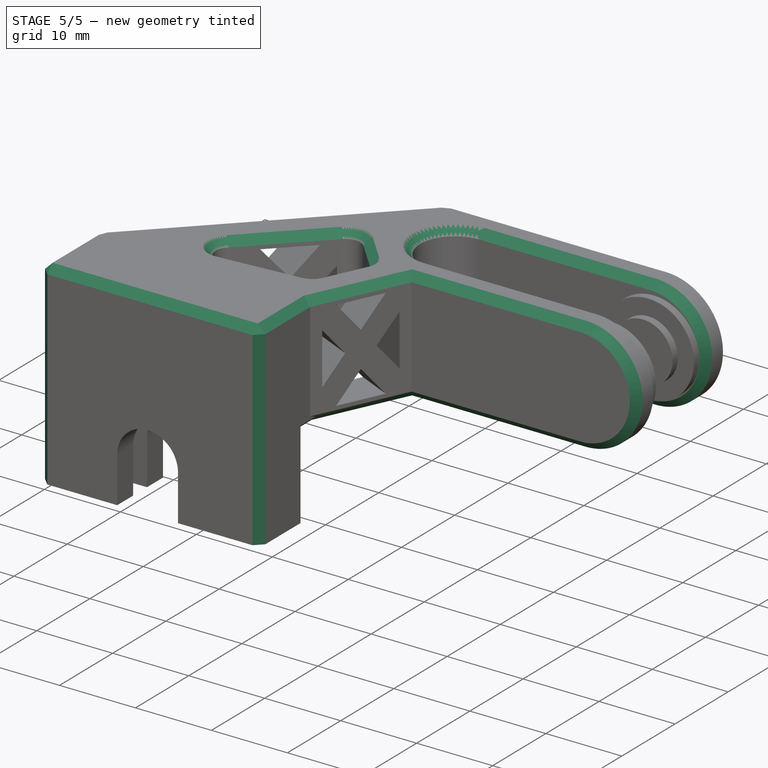
[diagram: stage 5 of 5 — iso view after this stage's code; geometry added in this stage tinted green]
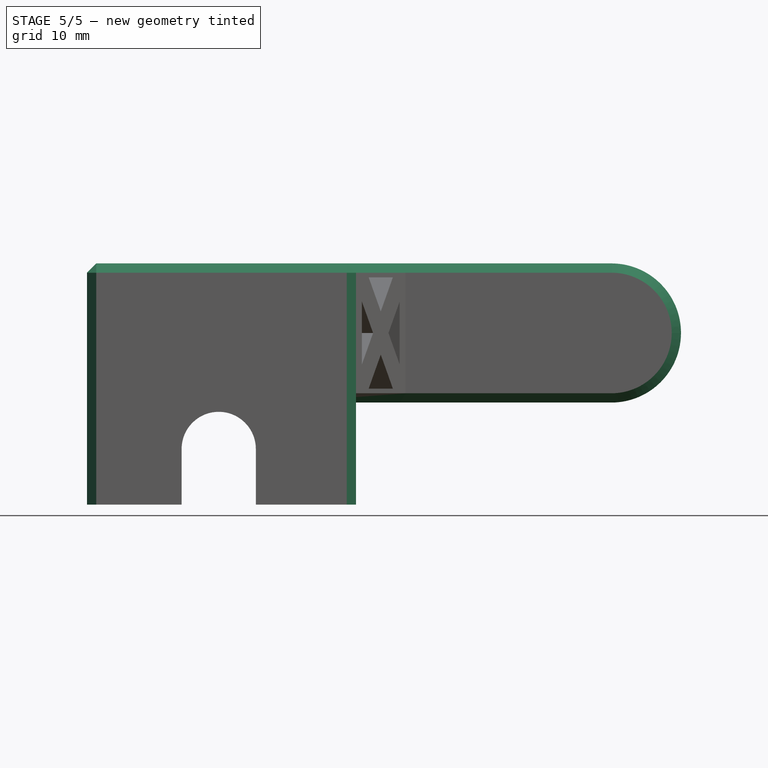
[diagram: stage 5 of 5 — front view after this stage's code; geometry added in this stage tinted green]
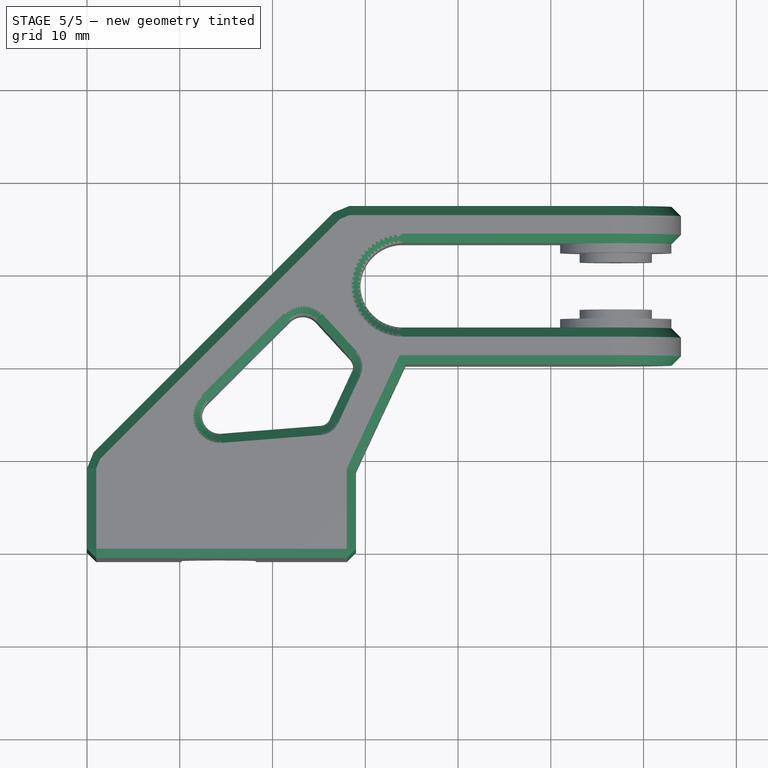
[diagram: stage 5 of 5 — top view after this stage's code; geometry added in this stage tinted green]
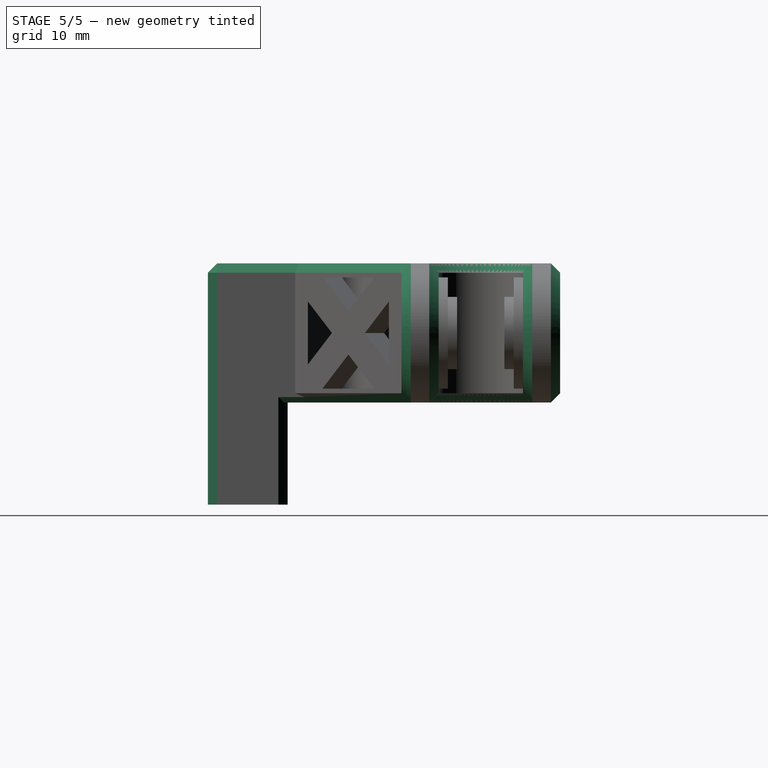
[diagram: stage 5 of 5 — right view after this stage's code; geometry added in this stage tinted green]
FEATURE [PartDesign::Chamfer] Chamfer
  Angle = 45
  Base = -> Pocket003 [Edge44,Edge23]
  BaseFeature = -> Pocket003
  ChamferType = 0
  FlipDirection = false
  Size = 1
  Size2 = 1
  SupportTransform = false
FEATURE [PartDesign::Chamfer] Chamfer001
  Angle = 45
  Base = -> Chamfer [Edge14,Edge12,Edge17,Edge77,Edge11,Edge46,Edge49,Edge57,Edge50,Edge56,Edge87,Edge102,Edge74,Edge166,Edge100,Edge72,Edge79,Edge187,Edge19]
  BaseFeature = -> Chamfer
  ChamferType = 0
  FlipDirection = false
  Size = 1
  Size2 = 1
  SupportTransform = false
FEATURE [PartDesign::Chamfer] Chamfer002
  Angle = 45
  Base = -> Chamfer001 [Edge9]
  BaseFeature = -> Chamfer001
  ChamferType = 0
  FlipDirection = false
  Size = 0.59
  Size2 = 1
  SupportTransform = false
FEATURE [PartDesign::Body] Body
  Group = -> [Sketch001,Pad,Sketch003,Pad001,Sketch004,Sketch,Sketch005,Pad002,Pad003,Pad004,Sketch008,Pocket,Sketch012,Pad005,Sketch013,Pocket001,Sketch014,Pad006,Sketch015,Pocket002,Fillet,Sketch016,Pocket003,Chamfer,Chamfer001,Chamfer002]
  Origin = -> Origin001
  Tip = -> Chamfer002
FEATURE [App::Part] Part
  Group = -> [Body]
  Origin = -> Origin
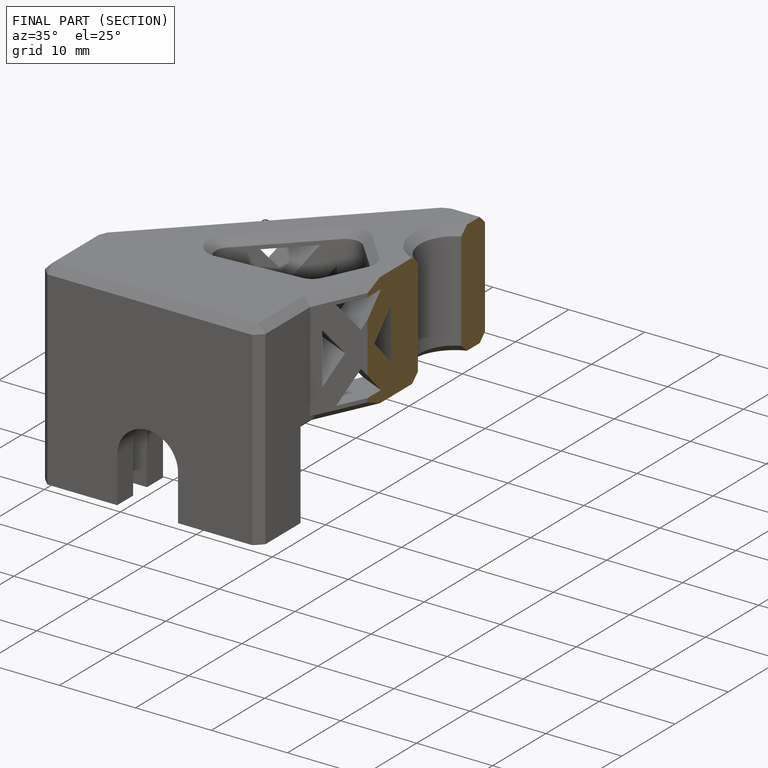
[diagram: finished part — half-section view (interior)]
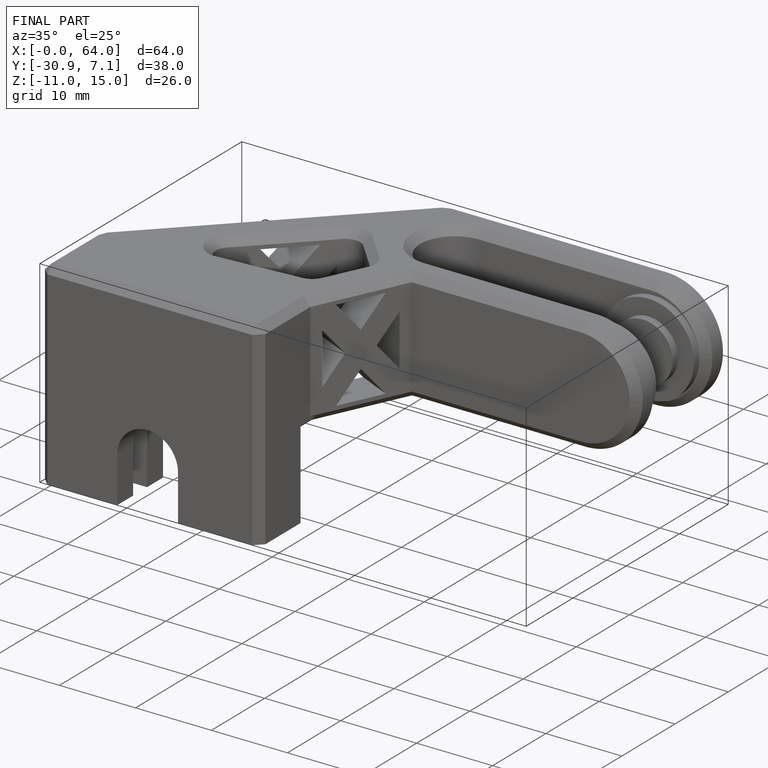
[diagram: finished part — iso view with bounding-box wireframe]
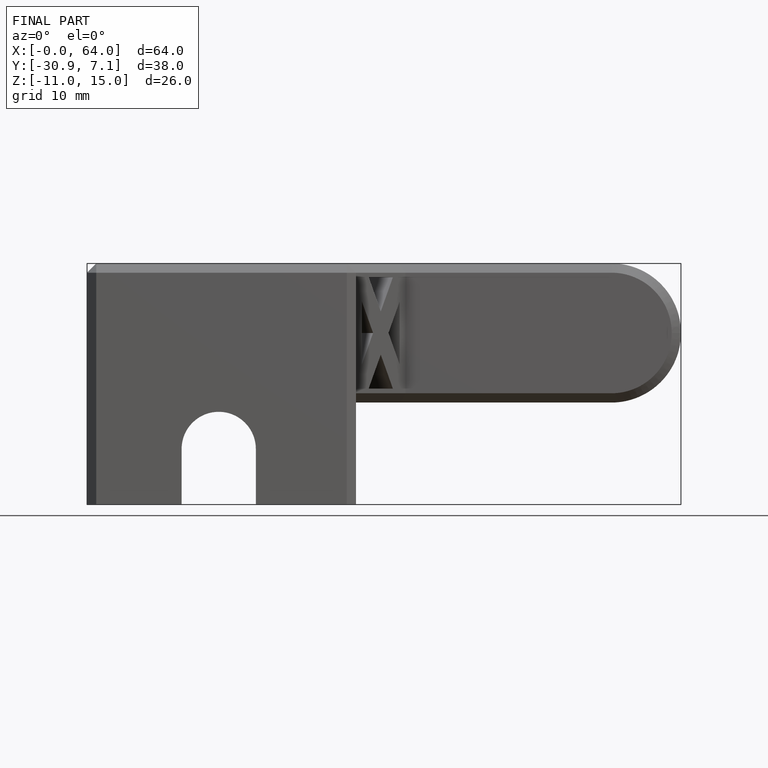
[diagram: finished part — front view with bounding-box wireframe]
